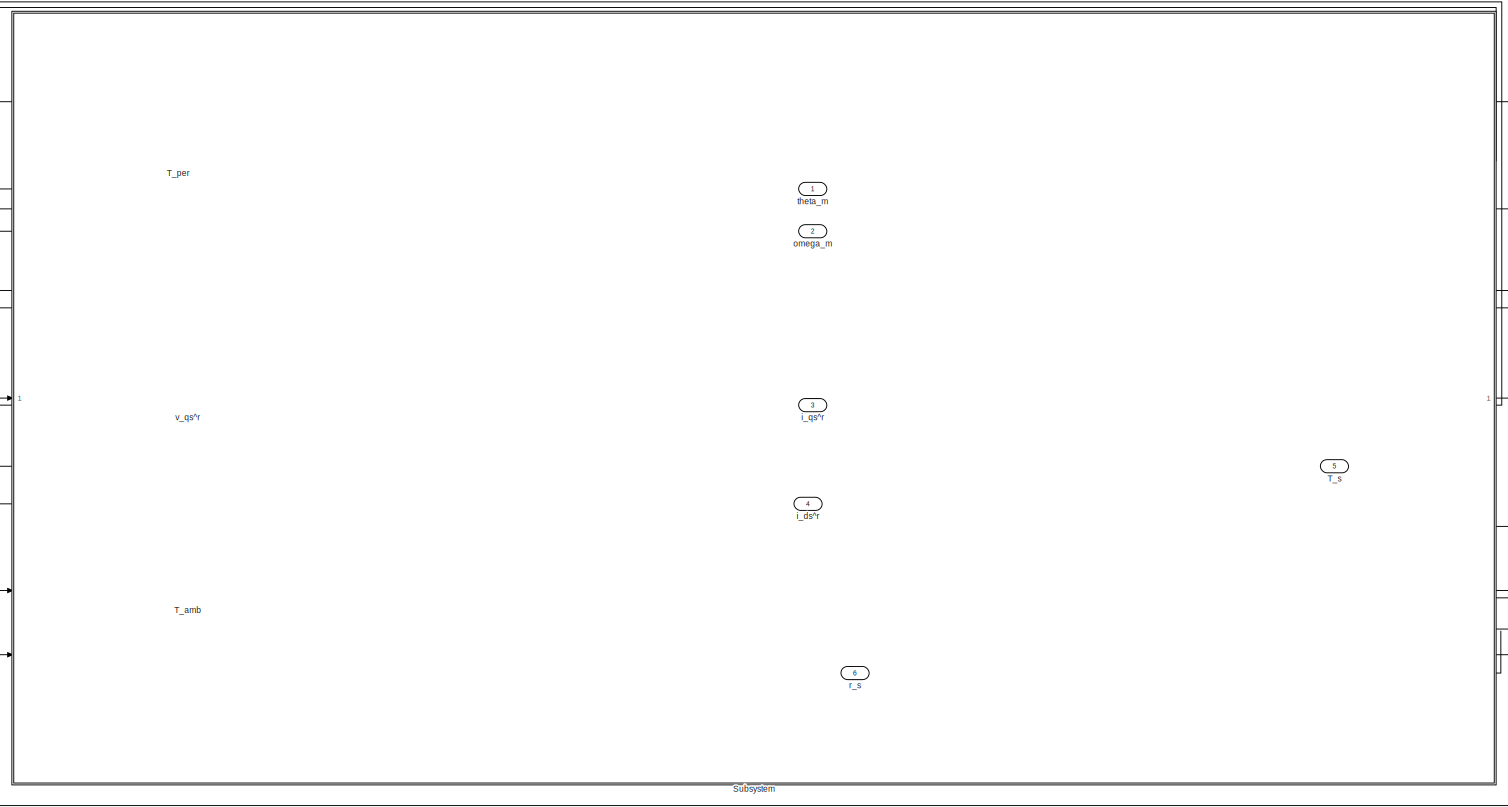
[diagram: root canvas - part 1/1, most of the canvas]
MODEL slx_6dbc8c368cc6
KIND model
CONFIG AbsTol = auto
CONFIG EnableMultiTasking = off
CONFIG FixedStep = auto
CONFIG MaxStep = auto
CONFIG MinStep = auto
CONFIG RelTol = 1e-3
CONFIG SampleTimeConstraint = Unconstrained
CONFIG SolverName = VariableStepAuto
CONFIG StartTime = 0.0
CONFIG StopTime = 10.0
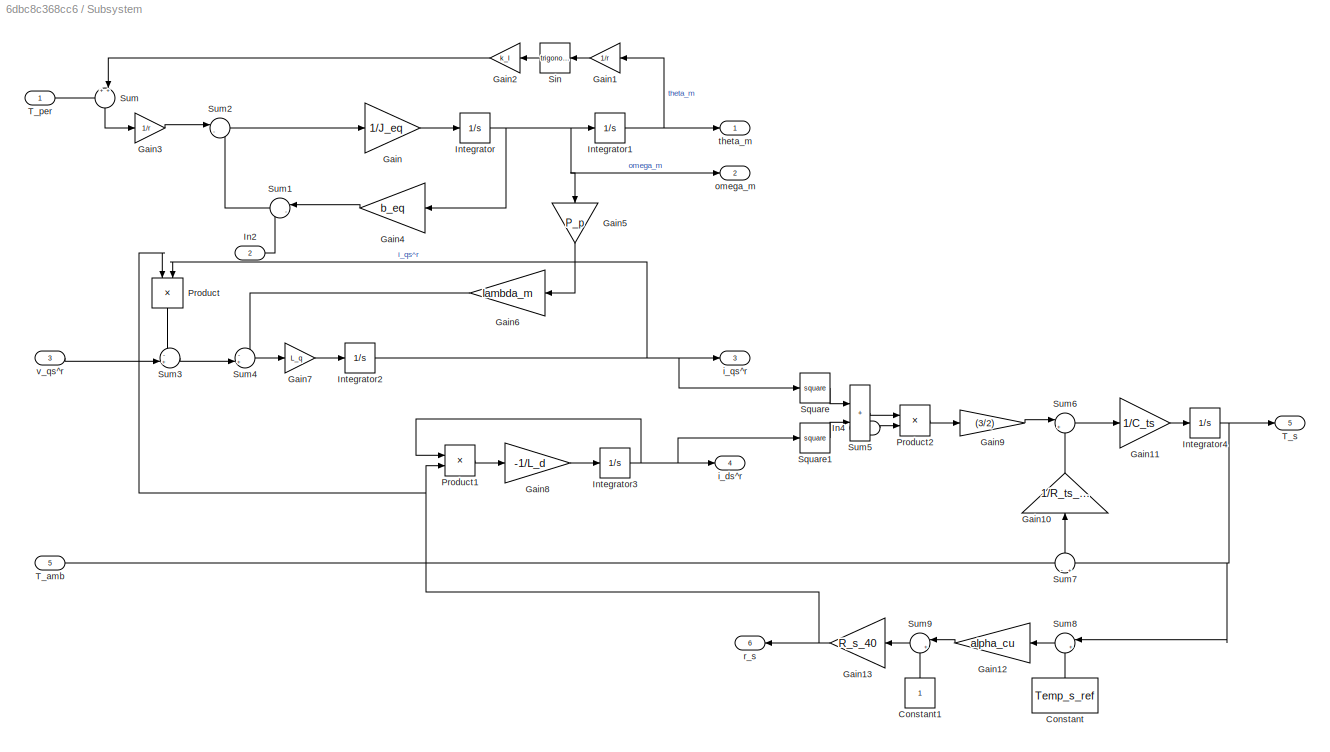
BLOCK [SubSystem] Subsystem
BLOCK [Constant] Subsystem/Constant
  NameLocation = right
  Value = Temp_s_ref
BLOCK [Constant] Subsystem/Constant1
  NameLocation = right
BLOCK [Gain] Subsystem/Gain
  Gain = 1/J_eq
BLOCK [Gain] Subsystem/Gain1
  Gain = 1/r
  NameLocation = top
BLOCK [Gain] Subsystem/Gain10
  Gain = 1/R_ts_amb
  NameLocation = right
BLOCK [Gain] Subsystem/Gain11
  Gain = 1/C_ts
BLOCK [Gain] Subsystem/Gain12
  Gain = alpha_cu
  NameLocation = top
BLOCK [Gain] Subsystem/Gain13
  Gain = R_s_40
  NameLocation = top
BLOCK [Gain] Subsystem/Gain2
  Gain = k_l
  NameLocation = top
BLOCK [Gain] Subsystem/Gain3
  Gain = 1/r
BLOCK [Gain] Subsystem/Gain4
  Gain = b_eq
  NameLocation = top
BLOCK [Gain] Subsystem/Gain5
  Gain = P_p
  NameLocation = left
BLOCK [Gain] Subsystem/Gain6
  Gain = lambda_m
  NameLocation = top
BLOCK [Gain] Subsystem/Gain7
  Gain = L_q
BLOCK [Gain] Subsystem/Gain8
  Gain = -1/L_d
BLOCK [Gain] Subsystem/Gain9
  Gain = (3/2)
BLOCK [Inport] Subsystem/In2
  Port = 2
BLOCK [Inport] Subsystem/In4
  Port = 4
BLOCK [Integrator] Subsystem/Integrator
BLOCK [Integrator] Subsystem/Integrator1
BLOCK [Integrator] Subsystem/Integrator2
BLOCK [Integrator] Subsystem/Integrator3
BLOCK [Integrator] Subsystem/Integrator4
  InitialCondition = 40
BLOCK [Product] Subsystem/Product
  NameLocation = left
BLOCK [Product] Subsystem/Product1
BLOCK [Product] Subsystem/Product2
BLOCK [Trigonometry] Subsystem/Sin
  NameLocation = top
BLOCK [Math] Subsystem/Square
  Operator = square
BLOCK [Math] Subsystem/Square1
  Operator = square
BLOCK [Sum] Subsystem/Sum
  Inputs = ++|
  NameLocation = left
BLOCK [Sum] Subsystem/Sum1
  Inputs = |-+
  NameLocation = top
BLOCK [Sum] Subsystem/Sum2
  Inputs = |-+
BLOCK [Sum] Subsystem/Sum3
  Inputs = -+|
BLOCK [Sum] Subsystem/Sum4
  Inputs = -+|
BLOCK [Sum] Subsystem/Sum5
  IconShape = rectangular
BLOCK [Sum] Subsystem/Sum6
  Inputs = |+-
BLOCK [Sum] Subsystem/Sum7
  Inputs = -|+
  NameLocation = right
BLOCK [Sum] Subsystem/Sum8
  Inputs = |+-
  NameLocation = top
BLOCK [Sum] Subsystem/Sum9
  Inputs = |++
  NameLocation = top
BLOCK [Inport] Subsystem/T_amb
  Port = 5
BLOCK [Inport] Subsystem/T_per
BLOCK [Outport] Subsystem/T_s
  Port = 5
BLOCK [Outport] Subsystem/i_ds^r
  Port = 4
BLOCK [Outport] Subsystem/i_qs^r
  Port = 3
BLOCK [Outport] Subsystem/omega_m
  Port = 2
BLOCK [Outport] Subsystem/r_s
  NameLocation = top
  Port = 6
BLOCK [Outport] Subsystem/theta_m
BLOCK [Inport] Subsystem/v_qs^r
  Port = 3
BLOCK [Inport] T_amb
  Port = 3
BLOCK [Inport] T_per
BLOCK [Outport] T_s
  Port = 5
BLOCK [Outport] i_ds^r
  Port = 4
BLOCK [Outport] i_qs^r
  Port = 3
BLOCK [Outport] omega_m
  Port = 2
BLOCK [Outport] r_s
  NameLocation = top
  Port = 6
BLOCK [Outport] theta_m
BLOCK [Inport] v_qs^r
  Port = 2
LINE Subsystem/Constant1:1 -> Subsystem/Sum9:2
LINE Subsystem/Constant:1 -> Subsystem/Sum8:2
LINE Subsystem/Gain10:1 -> Subsystem/Sum6:2
LINE Subsystem/Gain11:1 -> Subsystem/Integrator4:1
LINE Subsystem/Gain12:1 -> Subsystem/Sum9:1
NET Subsystem/Gain13:1 -> Subsystem/Product1:2, Subsystem/Product:1, Subsystem/r_s:1
LINE Subsystem/Gain1:1 -> Subsystem/Sin:1
LINE Subsystem/Gain2:1 -> Subsystem/Sum:2
LINE Subsystem/Gain3:1 -> Subsystem/Sum2:1
LINE Subsystem/Gain4:1 -> Subsystem/Sum1:1
LINE Subsystem/Gain5:1 -> Subsystem/Gain6:1
LINE Subsystem/Gain6:1 -> Subsystem/Sum4:1
LINE Subsystem/Gain7:1 -> Subsystem/Integrator2:1
LINE Subsystem/Gain8:1 -> Subsystem/Integrator3:1
LINE Subsystem/Gain9:1 -> Subsystem/Sum6:1
LINE Subsystem/Gain:1 -> Subsystem/Integrator:1
LINE Subsystem/In2:1 -> Subsystem/Sum1:2
LINE Subsystem/In4:1 -> Subsystem/Product2:2
NET Subsystem/Integrator1:1 -> Subsystem/Gain1:1, Subsystem/theta_m:1
NET Subsystem/Integrator2:1 -> Subsystem/Product:2, Subsystem/Square:1, Subsystem/i_qs^r:1
NET Subsystem/Integrator3:1 -> Subsystem/Product1:1, Subsystem/Square1:1, Subsystem/i_ds^r:1
NET Subsystem/Integrator4:1 -> Subsystem/Sum7:2, Subsystem/Sum8:1, Subsystem/T_s:1
NET Subsystem/Integrator:1 -> Subsystem/Gain4:1, Subsystem/Gain5:1, Subsystem/Integrator1:1, Subsystem/omega_m:1
LINE Subsystem/Product1:1 -> Subsystem/Gain8:1
LINE Subsystem/Product2:1 -> Subsystem/Gain9:1
LINE Subsystem/Product:1 -> Subsystem/Sum3:1
LINE Subsystem/Sin:1 -> Subsystem/Gain2:1
LINE Subsystem/Square1:1 -> Subsystem/Sum5:2
LINE Subsystem/Square:1 -> Subsystem/Sum5:1
LINE Subsystem/Sum1:1 -> Subsystem/Sum2:2
LINE Subsystem/Sum2:1 -> Subsystem/Gain:1
LINE Subsystem/Sum3:1 -> Subsystem/Sum4:2
LINE Subsystem/Sum4:1 -> Subsystem/Gain7:1
LINE Subsystem/Sum5:1 -> Subsystem/Product2:1
LINE Subsystem/Sum6:1 -> Subsystem/Gain11:1
LINE Subsystem/Sum7:1 -> Subsystem/Gain10:1
LINE Subsystem/Sum8:1 -> Subsystem/Gain12:1
LINE Subsystem/Sum9:1 -> Subsystem/Gain13:1
LINE Subsystem/Sum:1 -> Subsystem/Gain3:1
LINE Subsystem/T_amb:1 -> Subsystem/Sum7:1
LINE Subsystem/T_per:1 -> Subsystem/Sum:1
LINE Subsystem/v_qs^r:1 -> Subsystem/Sum3:2
LINE Subsystem:1 -> theta_m:1
LINE Subsystem:2 -> omega_m:1
LINE Subsystem:3 -> i_qs^r:1
LINE Subsystem:4 -> i_ds^r:1
LINE Subsystem:5 -> T_s:1
LINE Subsystem:6 -> r_s:1
LINE T_amb:1 -> Subsystem:5
LINE T_per:1 -> Subsystem:1
LINE v_qs^r:1 -> Subsystem:3
note: NET lines group one-source signal fan-out (src -> all destinations, sorted); 1:1 wires keep LINE
